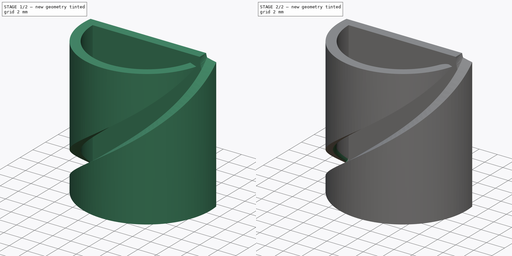
[diagram: build sequence overview — one tinted view per stage of 2, left to right]
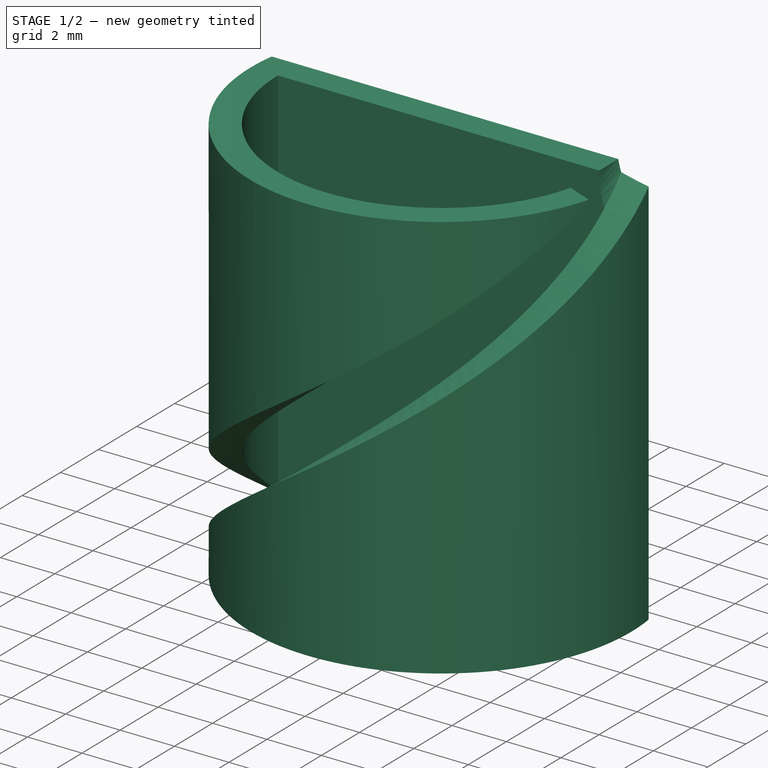
[diagram: stage 1 of 2 — iso view after this stage's code; geometry added in this stage tinted green]
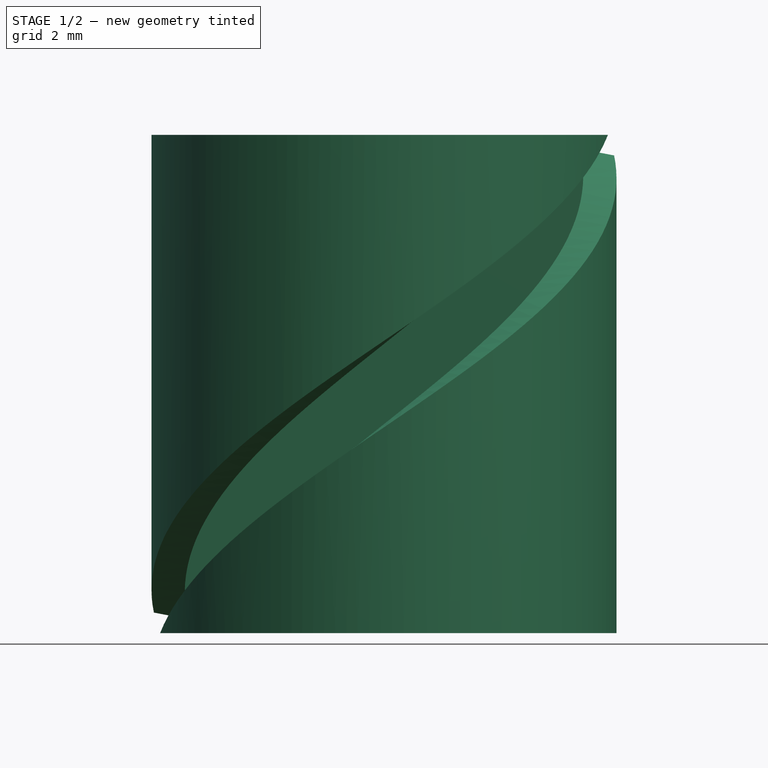
[diagram: stage 1 of 2 — front view after this stage's code; geometry added in this stage tinted green]
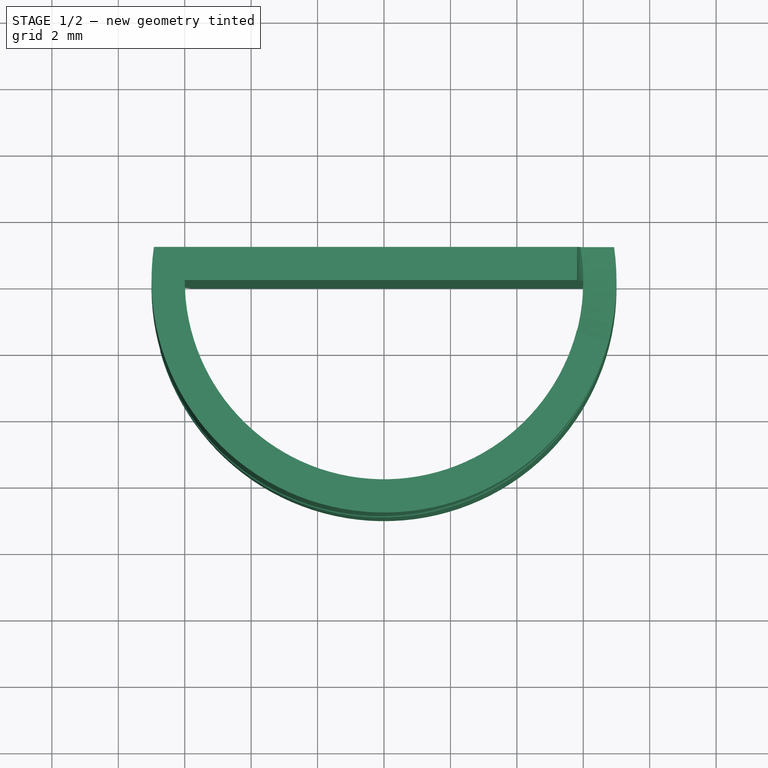
[diagram: stage 1 of 2 — top view after this stage's code; geometry added in this stage tinted green]
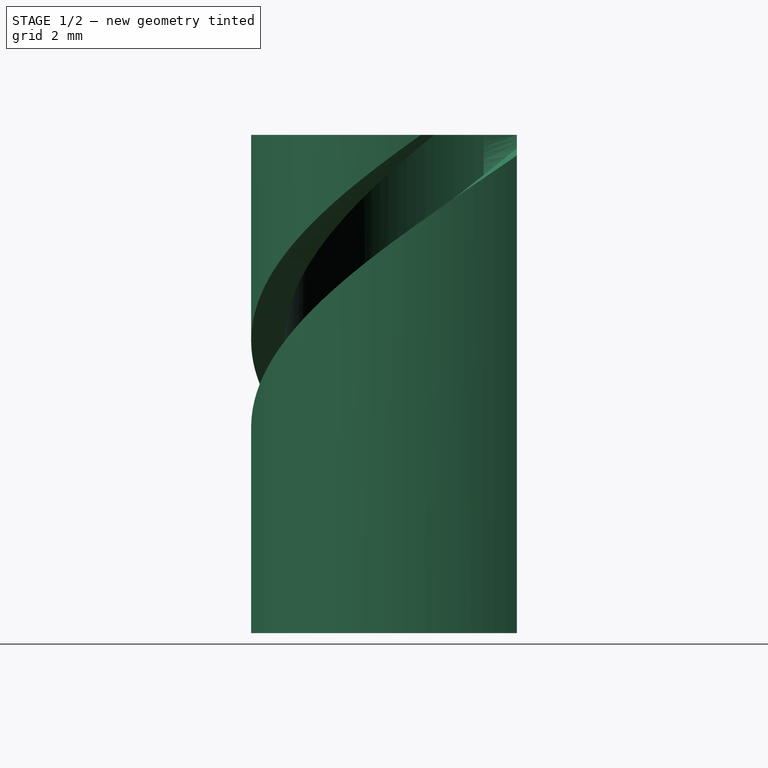
[diagram: stage 1 of 2 — right view after this stage's code; geometry added in this stage tinted green]
FCSTD DOCUMENT  (FreeCAD 0.21R33694 (Git))
Label: Cable-clip
License: Creative Commons Attribution-ShareAlike 4.0
LicenseURL: https://creativecommons.org/licenses/by-sa/4.0/
objects: Sketcher::SketchObject×2, PartDesign::Pad×1, Spreadsheet::Sheet×1, PartDesign::SubtractiveHelix×1, PartDesign::Fillet×1, PartDesign::Body×1
note: 9 computed .brp shape members not serialized (recipe doc carries the construction recipe); baked Part::Feature solids carry a one-line shape summary decoded from their .brp

FEATURE [Sketcher::SketchObject] Sketch
  FullyConstrained = true
  MapMode = 5
  Support = -> [XY_Plane]
  expr: Constraints[10] = <<dimensions>>.wall
  expr: Constraints[13] = <<dimensions>>.wall
  expr: Constraints[9] = Spreadsheet.inner_diameter
  sketch-geometry (5):
    g0: ArcOfCircle CenterX=0 CenterY=0 CenterZ=0 NormalX=0 NormalY=0 NormalZ=1 AngleXU=0 Radius=6 StartAngle=3.14159 EndAngle=6.28319
    g1: LineSegment StartX=-6 StartY=0 StartZ=0 EndX=6 EndY=0 EndZ=0
    g2: LineSegment StartX=-6.9282 StartY=1 StartZ=0 EndX=6.9282 EndY=1 EndZ=0
    g3: ArcOfCircle CenterX=0 CenterY=0 CenterZ=0 NormalX=0 NormalY=0 NormalZ=1 AngleXU=0 Radius=7 StartAngle=2.99825 EndAngle=6.42653
    g4: GeomPoint X=7 Y=0 Z=0
  constraints (14):
    c: Coincident(g0,g-1)
    c: PointOnObject(g0,g-1)
    c: PointOnObject(g0,g-1)
    c: Coincident(g1,g0)
    c: Coincident(g1,g0)
    c: Horizontal(g2)
    c: Coincident(g3,g0)
    c: Coincident(g3,g2)
    c: Coincident(g3,g2)
    c: Diameter(g0) = 12
    c: DistanceY(g0,g2) = 1
    c: PointOnObject(g4,g3)
    c: PointOnObject(g4,g-1)
    c: DistanceX(g0,g4) = 1
FEATURE [PartDesign::Pad] Pad  label="Pad-clip"
  Direction = (0,0,1)
  Length = 15
  Length2 = 10
  Profile = -> Sketch
  ReferenceAxis = -> Sketch [N_Axis]
  Type = 0
  expr: Length = <<dimensions>>.height
FEATURE [Spreadsheet::Sheet] Spreadsheet  label="dimensions"
  cells = A1='inner diameter; B1(inner_diameter)==12 mm; A2='height; B2(height)==15 mm; A3='wall; B3(wall)==1 mm; A4='opening; B4(opening)==3 mm
FEATURE [Sketcher::SketchObject] Sketch001
  ExternalGeometry = -> [Pad]
  FullyConstrained = true
  MapMode = 5
  Placement = pos=(0,0,0) rot=(1,0,0;3.14159rad)
  Support = -> [Pad]
  expr: Constraints[11] = <<dimensions>>.opening
  sketch-geometry (5):
    g0: LineSegment StartX=-5.80948 StartY=-1.5 StartZ=0 EndX=-7 EndY=-1.99313 EndZ=0
    g1: LineSegment StartX=-7 StartY=-1.99313 StartZ=0 EndX=-7 EndY=1.99313 EndZ=0
    g2: LineSegment StartX=-7 StartY=1.99313 StartZ=0 EndX=-5.80948 EndY=1.5 EndZ=0
    g3: GeomPoint X=-7 Y=0 Z=0
    g4: LineSegment StartX=-5.80948 StartY=1.5 StartZ=0 EndX=-5.80948 EndY=-1.5 EndZ=0
  constraints (12):
    c: Coincident(g0,g1)
    c: Coincident(g1,g2)
    c: Symmetric(g0,g1,g-1)
    c: PointOnObject(g3,g-4)
    c: PointOnObject(g3,g-1)
    c: PointOnObject(g3,g1)
    c: Angle(g2,g0) = 0.785398
    c: Coincident(g4,g2)
    c: Coincident(g4,g0)
    c: Symmetric(g2,g0,g-1)
    c: PointOnObject(g2,g-5)
    c: DistanceY(g4,g4) = 3
FEATURE [PartDesign::SubtractiveHelix] SubtractiveHelix  label="Groove"
  Angle = 0
  Axis = (0,0,-1)
  Base = (0,0,0)
  BaseFeature = -> Pad
  Growth = 0
  HasBeenEdited = true
  Height = 15
  LeftHanded = false
  Mode = 0
  Outside = false
  Pitch = 30
  Profile = -> Sketch001
  ReferenceAxis = -> Sketch001 [N_Axis]
  Reversed = true
  Turns = 0.5
  expr: Height = <<dimensions>>.height
  expr: Pitch = 2 * <<dimensions>>.height
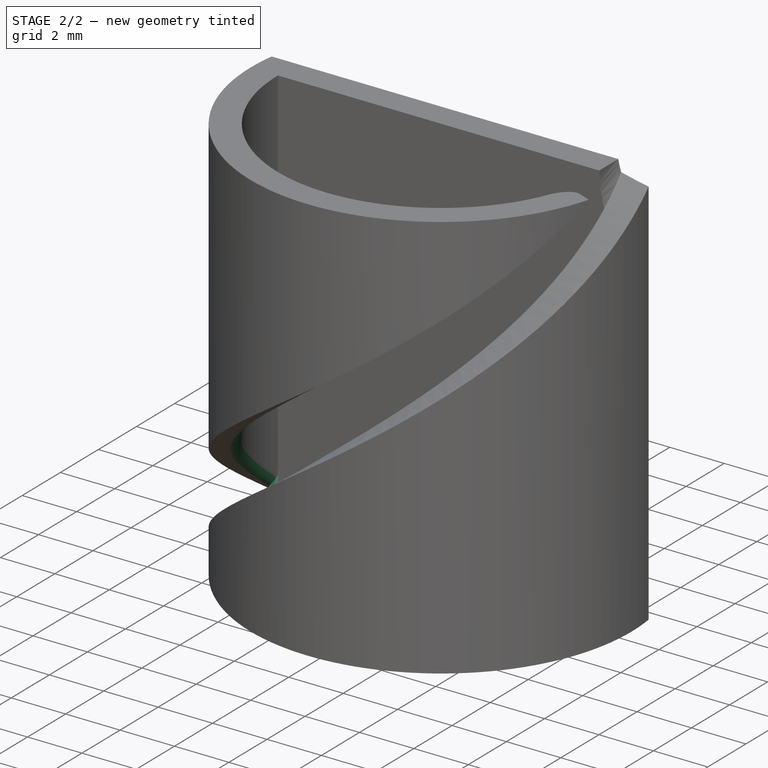
[diagram: stage 2 of 2 — iso view after this stage's code; geometry added in this stage tinted green]
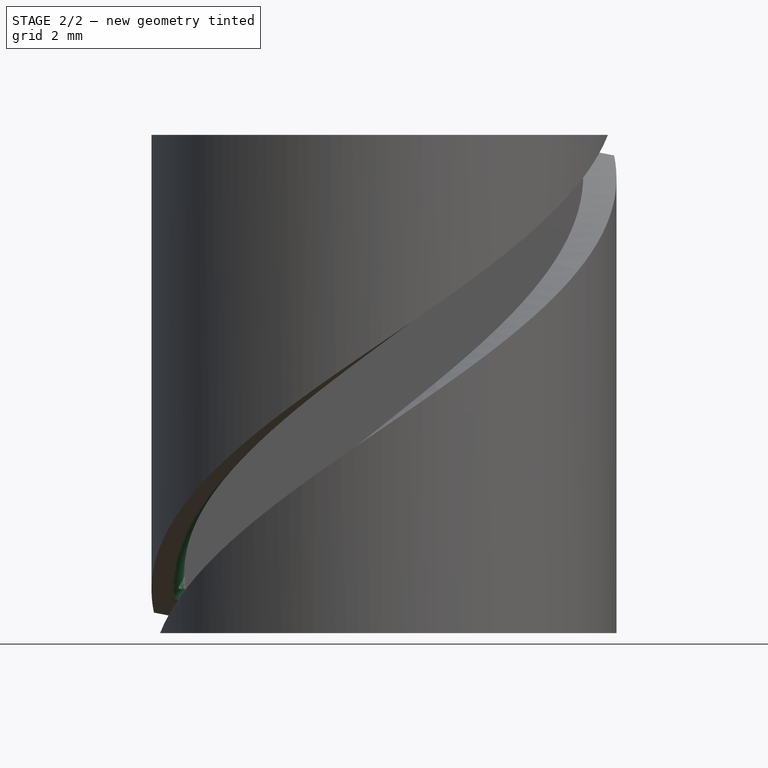
[diagram: stage 2 of 2 — front view after this stage's code; geometry added in this stage tinted green]
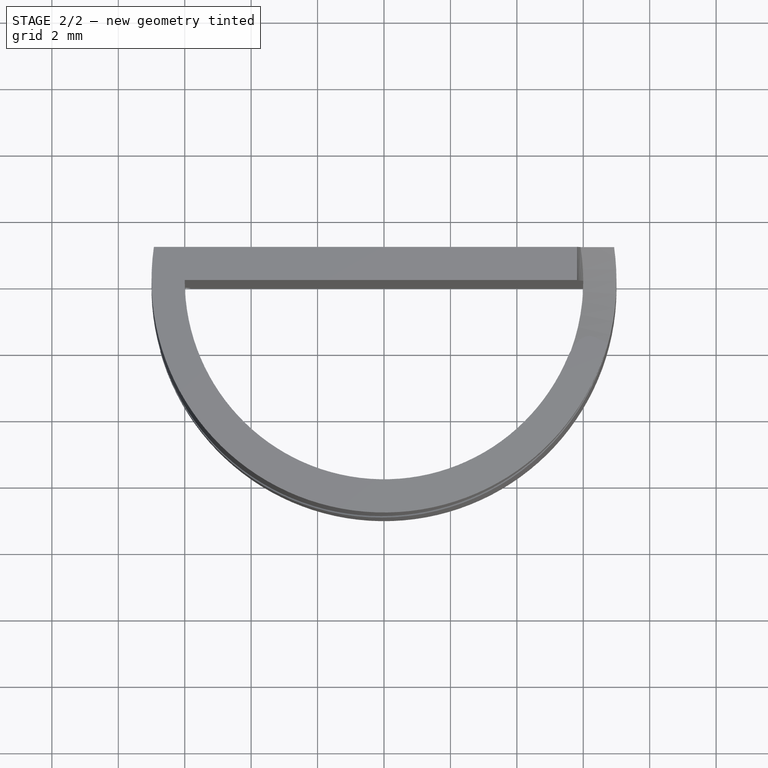
[diagram: stage 2 of 2 — top view after this stage's code; geometry added in this stage tinted green]
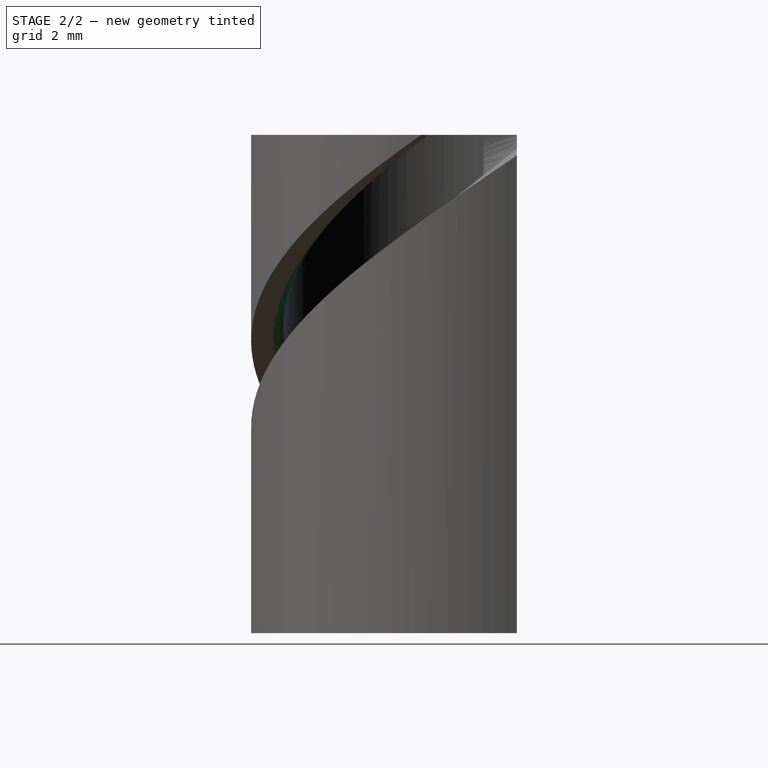
[diagram: stage 2 of 2 — right view after this stage's code; geometry added in this stage tinted green]
FEATURE [PartDesign::Fillet] Fillet
  Base = -> SubtractiveHelix [Edge9,Edge12]
  BaseFeature = -> SubtractiveHelix
  Radius = 0.5
  SupportTransform = false
  UseAllEdges = false
FEATURE [PartDesign::Body] Body  label="clip"
  Group = -> [Sketch,Pad,Sketch001,SubtractiveHelix,Fillet]
  Origin = -> Origin
  Tip = -> Fillet
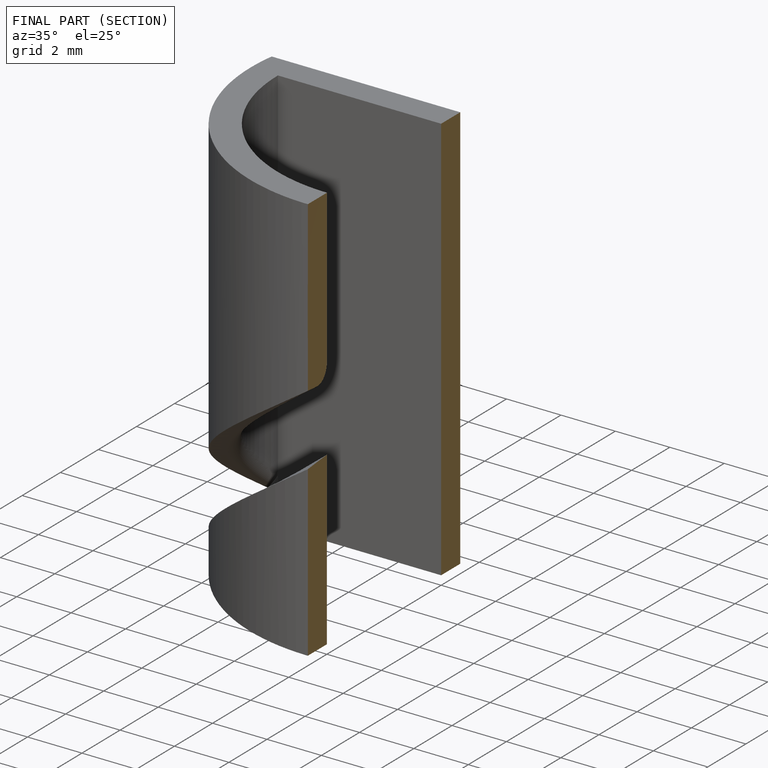
[diagram: finished part — half-section view (interior)]
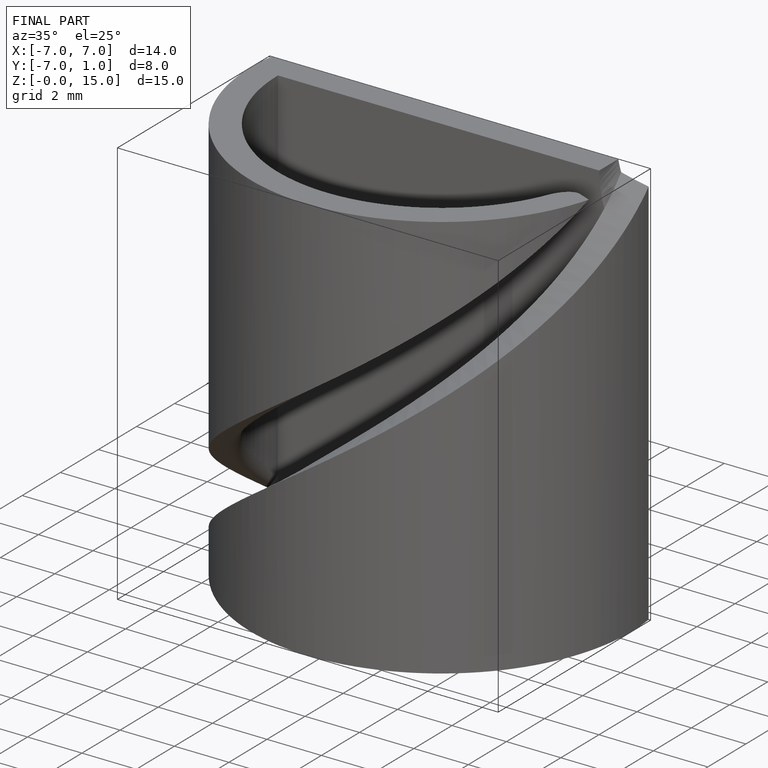
[diagram: finished part — iso view with bounding-box wireframe]
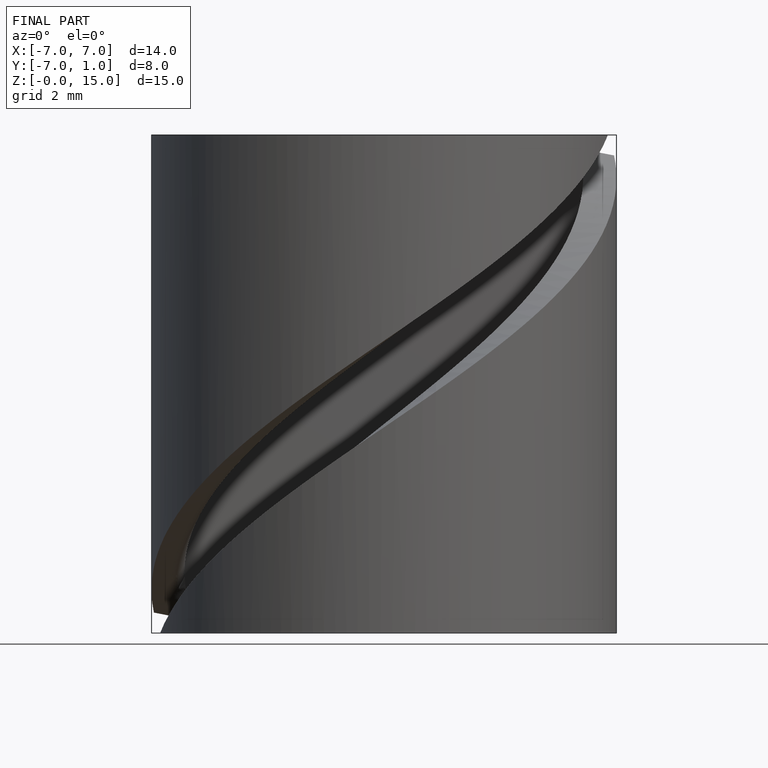
[diagram: finished part — front view with bounding-box wireframe]
